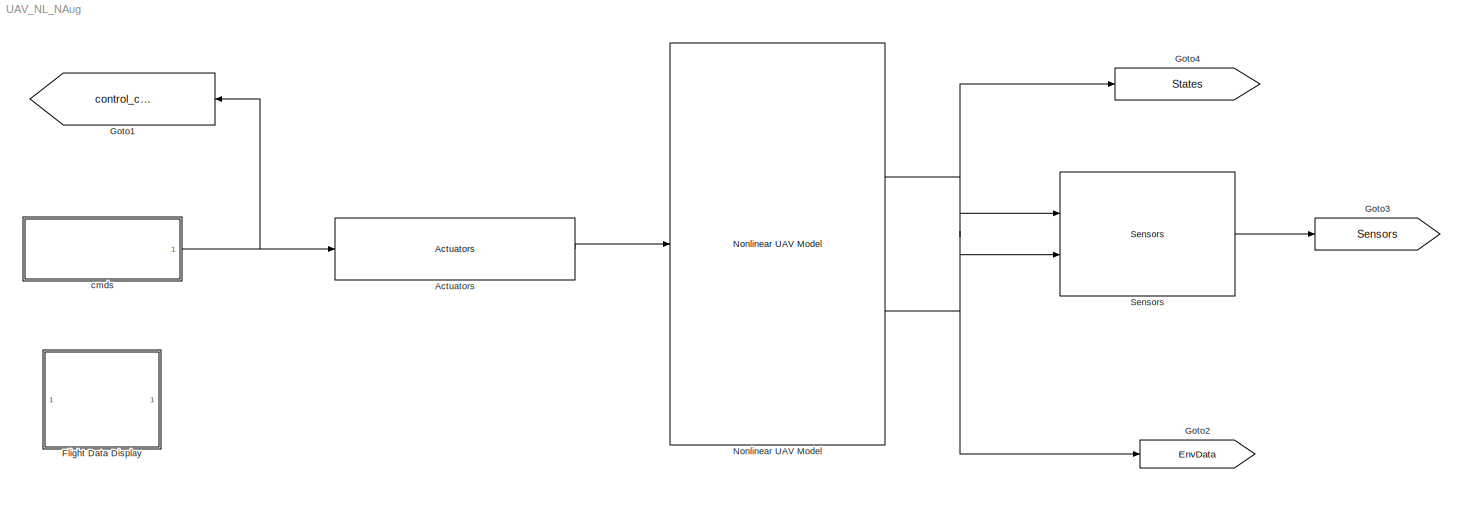
MODEL UAV_NL_NAug
KIND model
BLOCK [Reference] Actuators  REF=Actuator_Lib/Actuators
  Ports = [1, 1]
  SID = 3
  SourceBlock = Actuator_Lib/Actuators
  SourceType = SubSystem
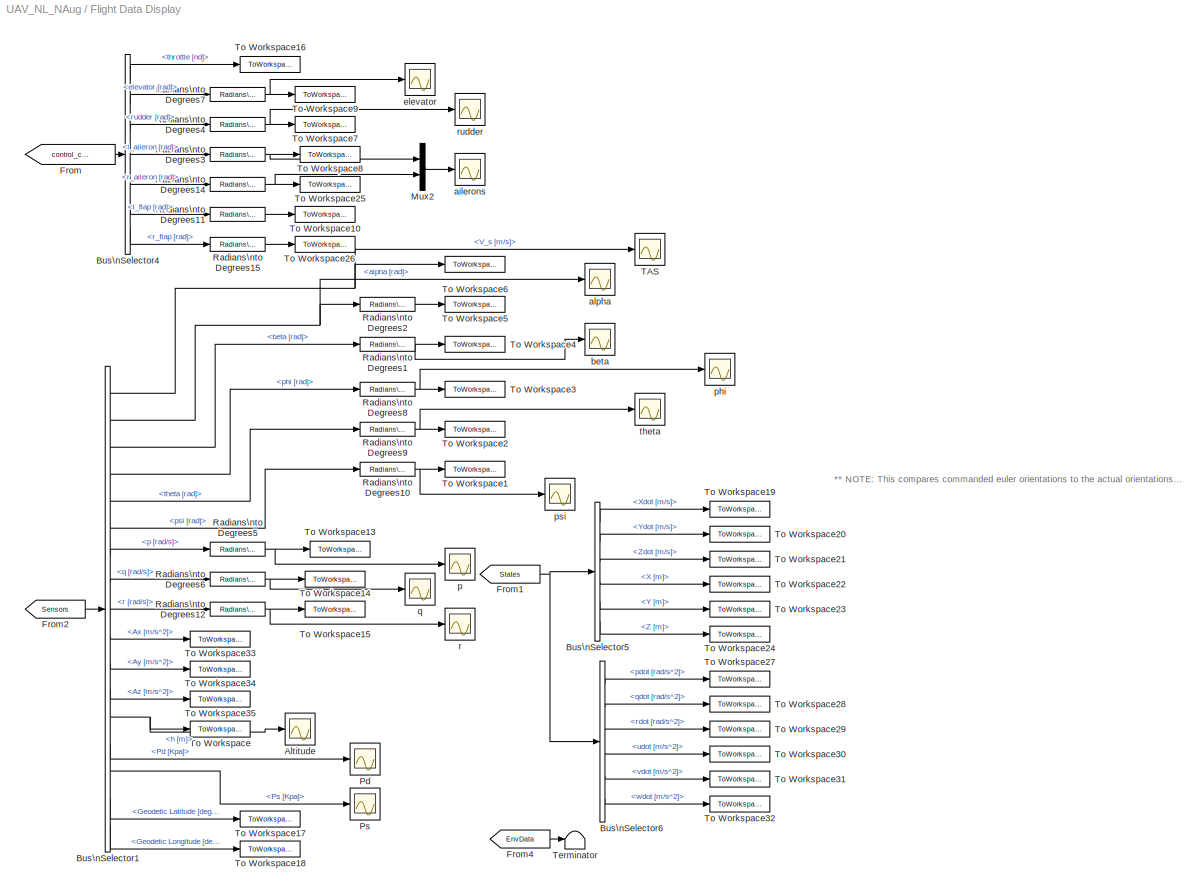
BLOCK [SubSystem] Flight Data Display
  FunctionWithSeparateData = off
  MaskDisplay = x = 0:.1:2*pi;\nplot(x,sin(x)+rand(size(x))*.5)
  MaskHideContents = off
  MaskIconFrame = on
  MaskIconOpaque = on
  MaskIconRotate = none
  MaskIconUnits = autoscale
  MaskPortRotate = default
  MinAlgLoopOccurrences = off
  Opaque = off
  Ports = []
  PropExecContextOutsideSubsystem = off
  RTWSystemCode = Auto
  RequestExecContextInheritance = off
  SID = 9
BLOCK [Scope] Flight Data Display/Altitude
  DataFormat = StructureWithTime
  Floating = off
  LimitDataPoints = off
  NumInputPorts = 1
  Ports = [1]
  SID = 10
  SampleTime = 0
  SaveName = ScopeData10
  TimeRange = 60
  YMax = 115
  YMin = 75
  ZoomMode = xonly
BLOCK [BusSelector] Flight Data Display/Bus\nSelector1
  OutputSignals = V_s [m/s],alpha [rad],beta [rad],phi [rad],theta [rad],psi [rad],p [rad/s],q [rad/s],r [rad/s],Ax [m/s^2],Ay [m/s^2],Az [m/s^2],h [m],Pd [Kpa],Ps [Kpa],Geodetic Latitude [deg],Geodetic Longitude [deg]
  Ports = [1, 17]
  SID = 11
BLOCK [BusSelector] Flight Data Display/Bus\nSelector4
  OutputSignals = throttle [nd],elevator [rad],rudder [rad],l_aileron [rad],r_aileron [rad],l_flap [rad],r_flap [rad]
  Ports = [1, 7]
  SID = 12
BLOCK [BusSelector] Flight Data Display/Bus\nSelector5
  OutputSignals = V_e [m/s].Xdot [m/s],V_e [m/s].Ydot [m/s],V_e [m/s].Zdot [m/s],X_e [m].X [m],X_e [m].Y [m],X_e [m].Z [m]
  Ports = [1, 6]
  SID = 13
BLOCK [BusSelector] Flight Data Display/Bus\nSelector6
  OutputSignals = AngAccel [rad/s^2].pdot [rad/s^2],AngAccel [rad/s^2].qdot [rad/s^2],AngAccel [rad/s^2].rdot [rad/s^2],A_b [m/s^2].udot [m/s^2],A_b [m/s^2].vdot [m/s^2],A_b [m/s^2].wdot [m/s^2]
  Ports = [1, 6]
  SID = 14
BLOCK [From] Flight Data Display/From
  GotoTag = control_cmds
  SID = 16
  TagVisibility = global
BLOCK [From] Flight Data Display/From1
  GotoTag = States
  SID = 17
  TagVisibility = global
BLOCK [From] Flight Data Display/From2
  GotoTag = Sensors
  SID = 18
  TagVisibility = global
BLOCK [From] Flight Data Display/From4
  GotoTag = EnvData
  SID = 20
  TagVisibility = global
BLOCK [Mux] Flight Data Display/Mux2
  DisplayOption = bar
  Inputs = 2
  Ports = [2, 1]
  SID = 22
BLOCK [Scope] Flight Data Display/Pd
  DataFormat = StructureWithTime
  Floating = off
  LimitDataPoints = off
  NumInputPorts = 1
  Ports = [1]
  SID = 24
  SampleTime = 0
  SaveName = ScopeData5
  TimeRange = 25
  YMax = 0.2
  YMin = 0.14
BLOCK [Scope] Flight Data Display/Ps
  DataFormat = StructureWithTime
  Floating = off
  LimitDataPoints = off
  NumInputPorts = 1
  Ports = [1]
  SID = 25
  SampleTime = 0
  SaveName = ScopeData6
  TimeRange = 25
  YMax = 100.52
  YMin = 100.45
BLOCK [Reference] Flight Data Display/Radians\nto Degrees1  REF=simulink_extras/Transformations/Radians\nto Degrees
  Ports = [1, 1]
  SID = 26
  SourceBlock = simulink_extras/Transformations/Radians\nto Degrees
  SourceType = RadiansToDegrees
BLOCK [Reference] Flight Data Display/Radians\nto Degrees10  REF=simulink_extras/Transformations/Radians\nto Degrees
  Ports = [1, 1]
  SID = 27
  SourceBlock = simulink_extras/Transformations/Radians\nto Degrees
  SourceType = RadiansToDegrees
BLOCK [Reference] Flight Data Display/Radians\nto Degrees11  REF=simulink_extras/Transformations/Radians\nto Degrees
  Ports = [1, 1]
  SID = 28
  SourceBlock = simulink_extras/Transformations/Radians\nto Degrees
  SourceType = RadiansToDegrees
BLOCK [Reference] Flight Data Display/Radians\nto Degrees12  REF=simulink_extras/Transformations/Radians\nto Degrees
  Ports = [1, 1]
  SID = 29
  SourceBlock = simulink_extras/Transformations/Radians\nto Degrees
  SourceType = RadiansToDegrees
BLOCK [Reference] Flight Data Display/Radians\nto Degrees14  REF=simulink_extras/Transformations/Radians\nto Degrees
  Ports = [1, 1]
  SID = 31
  SourceBlock = simulink_extras/Transformations/Radians\nto Degrees
  SourceType = RadiansToDegrees
BLOCK [Reference] Flight Data Display/Radians\nto Degrees15  REF=simulink_extras/Transformations/Radians\nto Degrees
  Ports = [1, 1]
  SID = 32
  SourceBlock = simulink_extras/Transformations/Radians\nto Degrees
  SourceType = RadiansToDegrees
BLOCK [Reference] Flight Data Display/Radians\nto Degrees2  REF=simulink_extras/Transformations/Radians\nto Degrees
  Ports = [1, 1]
  SID = 33
  SourceBlock = simulink_extras/Transformations/Radians\nto Degrees
  SourceType = RadiansToDegrees
BLOCK [Reference] Flight Data Display/Radians\nto Degrees3  REF=simulink_extras/Transformations/Radians\nto Degrees
  Ports = [1, 1]
  SID = 34
  SourceBlock = simulink_extras/Transformations/Radians\nto Degrees
  SourceType = RadiansToDegrees
BLOCK [Reference] Flight Data Display/Radians\nto Degrees4  REF=simulink_extras/Transformations/Radians\nto Degrees
  Ports = [1, 1]
  SID = 35
  SourceBlock = simulink_extras/Transformations/Radians\nto Degrees
  SourceType = RadiansToDegrees
BLOCK [Reference] Flight Data Display/Radians\nto Degrees5  REF=simulink_extras/Transformations/Radians\nto Degrees
  Ports = [1, 1]
  SID = 36
  SourceBlock = simulink_extras/Transformations/Radians\nto Degrees
  SourceType = RadiansToDegrees
BLOCK [Reference] Flight Data Display/Radians\nto Degrees6  REF=simulink_extras/Transformations/Radians\nto Degrees
  Ports = [1, 1]
  SID = 37
  SourceBlock = simulink_extras/Transformations/Radians\nto Degrees
  SourceType = RadiansToDegrees
BLOCK [Reference] Flight Data Display/Radians\nto Degrees7  REF=simulink_extras/Transformations/Radians\nto Degrees
  Ports = [1, 1]
  SID = 38
  SourceBlock = simulink_extras/Transformations/Radians\nto Degrees
  SourceType = RadiansToDegrees
BLOCK [Reference] Flight Data Display/Radians\nto Degrees8  REF=simulink_extras/Transformations/Radians\nto Degrees
  Ports = [1, 1]
  SID = 39
  SourceBlock = simulink_extras/Transformations/Radians\nto Degrees
  SourceType = RadiansToDegrees
BLOCK [Reference] Flight Data Display/Radians\nto Degrees9  REF=simulink_extras/Transformations/Radians\nto Degrees
  Ports = [1, 1]
  SID = 40
  SourceBlock = simulink_extras/Transformations/Radians\nto Degrees
  SourceType = RadiansToDegrees
BLOCK [Scope] Flight Data Display/TAS
  DataFormat = StructureWithTime
  Floating = off
  LimitDataPoints = off
  NumInputPorts = 1
  Ports = [1]
  SID = 41
  SampleTime = 0
  SaveName = ScopeData3
  TimeRange = 45
  YMax = 19
  YMin = 14
BLOCK [Terminator] Flight Data Display/Terminator
  SID = 42
BLOCK [ToWorkspace] Flight Data Display/To Workspace
  MaxDataPoints = inf
  Ports = [1]
  SID = 43
  SampleTime = -1
  SaveFormat = Array
  VariableName = alt
BLOCK [ToWorkspace] Flight Data Display/To Workspace1
  MaxDataPoints = inf
  Ports = [1]
  SID = 44
  SampleTime = -1
  SaveFormat = Array
  VariableName = psi
BLOCK [ToWorkspace] Flight Data Display/To Workspace10
  MaxDataPoints = inf
  Ports = [1]
  SID = 45
  SampleTime = -1
  SaveFormat = Array
  VariableName = l_flap
BLOCK [ToWorkspace] Flight Data Display/To Workspace13
  MaxDataPoints = inf
  Ports = [1]
  SID = 48
  SampleTime = -1
  SaveFormat = Array
  VariableName = p
BLOCK [ToWorkspace] Flight Data Display/To Workspace14
  MaxDataPoints = inf
  Ports = [1]
  SID = 49
  SampleTime = -1
  SaveFormat = Array
  VariableName = q
BLOCK [ToWorkspace] Flight Data Display/To Workspace15
  MaxDataPoints = inf
  Ports = [1]
  SID = 50
  SampleTime = -1
  SaveFormat = Array
  VariableName = r
BLOCK [ToWorkspace] Flight Data Display/To Workspace16
  MaxDataPoints = inf
  Ports = [1]
  SID = 51
  SampleTime = -1
  SaveFormat = Array
  VariableName = throttle
BLOCK [ToWorkspace] Flight Data Display/To Workspace17
  MaxDataPoints = inf
  Ports = [1]
  SID = 52
  SampleTime = -1
  SaveFormat = Array
  VariableName = lat
BLOCK [ToWorkspace] Flight Data Display/To Workspace18
  MaxDataPoints = inf
  Ports = [1]
  SID = 53
  SampleTime = -1
  SaveFormat = Array
  VariableName = lon
BLOCK [ToWorkspace] Flight Data Display/To Workspace19
  MaxDataPoints = inf
  Ports = [1]
  SID = 54
  SampleTime = -1
  SaveFormat = Array
  VariableName = Xdot
BLOCK [ToWorkspace] Flight Data Display/To Workspace2
  MaxDataPoints = inf
  Ports = [1]
  SID = 55
  SampleTime = -1
  SaveFormat = Array
  VariableName = theta
BLOCK [ToWorkspace] Flight Data Display/To Workspace20
  MaxDataPoints = inf
  Ports = [1]
  SID = 56
  SampleTime = -1
  SaveFormat = Array
  VariableName = Ydot
BLOCK [ToWorkspace] Flight Data Display/To Workspace21
  MaxDataPoints = inf
  Ports = [1]
  SID = 57
  SampleTime = -1
  SaveFormat = Array
  VariableName = Zdot
BLOCK [ToWorkspace] Flight Data Display/To Workspace22
  MaxDataPoints = inf
  Ports = [1]
  SID = 58
  SampleTime = -1
  SaveFormat = Array
  VariableName = X
BLOCK [ToWorkspace] Flight Data Display/To Workspace23
  MaxDataPoints = inf
  Ports = [1]
  SID = 59
  SampleTime = -1
  SaveFormat = Array
  VariableName = Y
BLOCK [ToWorkspace] Flight Data Display/To Workspace24
  MaxDataPoints = inf
  Ports = [1]
  SID = 60
  SampleTime = -1
  SaveFormat = Array
  VariableName = Z
BLOCK [ToWorkspace] Flight Data Display/To Workspace25
  MaxDataPoints = inf
  Ports = [1]
  SID = 61
  SampleTime = -1
  SaveFormat = Array
  VariableName = r_aileron
BLOCK [ToWorkspace] Flight Data Display/To Workspace26
  MaxDataPoints = inf
  Ports = [1]
  SID = 62
  SampleTime = -1
  SaveFormat = Array
  VariableName = r_flap
BLOCK [ToWorkspace] Flight Data Display/To Workspace27
  MaxDataPoints = inf
  Ports = [1]
  SID = 63
  SampleTime = -1
  SaveFormat = Array
  VariableName = pdot
BLOCK [ToWorkspace] Flight Data Display/To Workspace28
  MaxDataPoints = inf
  Ports = [1]
  SID = 64
  SampleTime = -1
  SaveFormat = Array
  VariableName = qdot
BLOCK [ToWorkspace] Flight Data Display/To Workspace29
  MaxDataPoints = inf
  Ports = [1]
  SID = 65
  SampleTime = -1
  SaveFormat = Array
  VariableName = rdot
BLOCK [ToWorkspace] Flight Data Display/To Workspace3
  MaxDataPoints = inf
  Ports = [1]
  SID = 66
  SampleTime = -1
  SaveFormat = Array
  VariableName = phi
BLOCK [ToWorkspace] Flight Data Display/To Workspace30
  MaxDataPoints = inf
  Ports = [1]
  SID = 67
  SampleTime = -1
  SaveFormat = Array
  VariableName = udot
BLOCK [ToWorkspace] Flight Data Display/To Workspace31
  MaxDataPoints = inf
  Ports = [1]
  SID = 68
  SampleTime = -1
  SaveFormat = Array
  VariableName = vdot
BLOCK [ToWorkspace] Flight Data Display/To Workspace32
  MaxDataPoints = inf
  Ports = [1]
  SID = 69
  SampleTime = -1
  SaveFormat = Array
  VariableName = wdot
BLOCK [ToWorkspace] Flight Data Display/To Workspace33
  MaxDataPoints = inf
  Ports = [1]
  SID = 70
  SampleTime = -1
  SaveFormat = Array
  VariableName = Ax
BLOCK [ToWorkspace] Flight Data Display/To Workspace34
  MaxDataPoints = inf
  Ports = [1]
  SID = 71
  SampleTime = -1
  SaveFormat = Array
  VariableName = Ay
BLOCK [ToWorkspace] Flight Data Display/To Workspace35
  MaxDataPoints = inf
  Ports = [1]
  SID = 72
  SampleTime = -1
  SaveFormat = Array
  VariableName = Az
BLOCK [ToWorkspace] Flight Data Display/To Workspace4
  MaxDataPoints = inf
  Ports = [1]
  SID = 73
  SampleTime = -1
  SaveFormat = Array
  VariableName = beta
BLOCK [ToWorkspace] Flight Data Display/To Workspace5
  MaxDataPoints = inf
  Ports = [1]
  SID = 74
  SampleTime = -1
  SaveFormat = Array
  VariableName = alpha
BLOCK [ToWorkspace] Flight Data Display/To Workspace6
  MaxDataPoints = inf
  Ports = [1]
  SID = 75
  SampleTime = -1
  SaveFormat = Array
  VariableName = V_s
BLOCK [ToWorkspace] Flight Data Display/To Workspace7
  MaxDataPoints = inf
  Ports = [1]
  SID = 76
  SampleTime = -1
  SaveFormat = Array
  VariableName = rudder
BLOCK [ToWorkspace] Flight Data Display/To Workspace8
  MaxDataPoints = inf
  Ports = [1]
  SID = 77
  SampleTime = -1
  SaveFormat = Array
  VariableName = l_aileron
BLOCK [ToWorkspace] Flight Data Display/To Workspace9
  MaxDataPoints = inf
  Ports = [1]
  SID = 78
  SampleTime = -1
  SaveFormat = Array
  VariableName = elevator
BLOCK [Scope] Flight Data Display/ailerons
  DataFormat = StructureWithTime
  Floating = off
  LimitDataPoints = off
  NumInputPorts = 1
  Ports = [1]
  SID = 79
  SampleTime = 0
  SaveName = ScopeData2
  TimeRange = 15
  YMax = 0.6
  YMin = -0.6
BLOCK [Scope] Flight Data Display/alpha
  DataFormat = StructureWithTime
  Floating = off
  LimitDataPoints = off
  NumInputPorts = 1
  Ports = [1]
  SID = 80
  SampleTime = 0
  SaveName = ScopeData7
  TimeRange = 25
  YMax = 0.08
  YMin = 0.035
BLOCK [Scope] Flight Data Display/beta
  DataFormat = StructureWithTime
  Floating = off
  LimitDataPoints = off
  NumInputPorts = 1
  Ports = [1]
  SID = 81
  SampleTime = 0
  SaveName = ScopeData11
  TimeRange = 25
  YMax = 0.06
  YMin = -0.06
BLOCK [Scope] Flight Data Display/elevator
  DataFormat = StructureWithTime
  Floating = off
  LimitDataPoints = off
  NumInputPorts = 1
  Ports = [1]
  SID = 82
  SampleTime = 0
  SaveName = ScopeData1
  TimeRange = 15
  YMax = -5.23031
  YMin = -5.78087
BLOCK [Scope] Flight Data Display/p
  DataFormat = StructureWithTime
  Floating = off
  LimitDataPoints = off
  NumInputPorts = 1
  Ports = [1]
  SID = 83
  SampleTime = 0
  SaveName = ScopeData8
  TimeRange = 40
  YMax = 200
  YMin = -150
BLOCK [Scope] Flight Data Display/phi
  DataFormat = StructureWithTime
  Floating = off
  LimitDataPoints = off
  NumInputPorts = 1
  Ports = [1]
  SID = 118
  SampleTime = 0
  SaveName = ScopeData12
  TimeRange = 45
  YMax = 19
  YMin = 14
BLOCK [Scope] Flight Data Display/psi
  DataFormat = StructureWithTime
  Floating = off
  LimitDataPoints = off
  NumInputPorts = 1
  Ports = [1]
  SID = 120
  SampleTime = 0
  SaveName = ScopeData14
  TimeRange = 25
  YMax = 0.06
  YMin = -0.06
BLOCK [Scope] Flight Data Display/q
  DataFormat = StructureWithTime
  Floating = off
  LimitDataPoints = off
  NumInputPorts = 1
  Ports = [1]
  SID = 85
  SampleTime = 0
  SaveName = ScopeData9
  TimeRange = 15
  YMax = 0.252772
  YMin = 0.252772
BLOCK [Scope] Flight Data Display/r
  DataFormat = StructureWithTime
  Floating = off
  LimitDataPoints = off
  NumInputPorts = 1
  Ports = [1]
  SID = 86
  SampleTime = 0
  TimeRange = 45
  YMax = 8
  YMin = -8
BLOCK [Scope] Flight Data Display/rudder
  DataFormat = StructureWithTime
  Floating = off
  LimitDataPoints = off
  NumInputPorts = 1
  Ports = [1]
  SID = 87
  SampleTime = 0
  SaveName = ScopeData4
  TimeRange = 45
  YMax = 2
  YMin = -1.5
BLOCK [Scope] Flight Data Display/theta
  DataFormat = StructureWithTime
  Floating = off
  LimitDataPoints = off
  NumInputPorts = 1
  Ports = [1]
  SID = 119
  SampleTime = 0
  SaveName = ScopeData13
  TimeRange = 25
  YMax = 0.08
  YMin = 0.035
BLOCK [Goto] Goto1
  GotoTag = control_cmds
  SID = 115
  TagVisibility = global
BLOCK [Goto] Goto2
  GotoTag = EnvData
  SID = 94
  TagVisibility = global
BLOCK [Goto] Goto3
  GotoTag = Sensors
  SID = 89
  TagVisibility = global
BLOCK [Goto] Goto4
  GotoTag = States
  SID = 95
  TagVisibility = global
BLOCK [Reference] Nonlinear UAV Model  REF=NonlinearModel_Lib/Nonlinear UAV Model
  Ports = [1, 2]
  SID = 1
  SourceBlock = NonlinearModel_Lib/Nonlinear UAV Model
  SourceType = SubSystem
BLOCK [Reference] Sensors  REF=Sensors_Lib/Sensors
  Ports = [2, 1]
  SID = 93
  SourceBlock = Sensors_Lib/Sensors
  SourceType = SubSystem
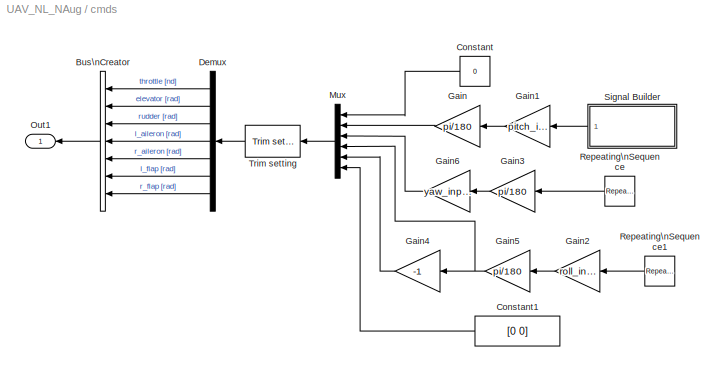
BLOCK [SubSystem] cmds
  FunctionWithSeparateData = off
  MaskHideContents = off
  MinAlgLoopOccurrences = off
  Opaque = off
  Ports = [0, 1]
  PropExecContextOutsideSubsystem = off
  RTWSystemCode = Auto
  RequestExecContextInheritance = off
  SID = 105
BLOCK [BusCreator] cmds/Bus\nCreator
  DisplayOption = bar
  Inputs = 7
  Ports = [7, 1]
  SID = 112
BLOCK [Constant] cmds/Constant
  SID = 103
  Value = 0
BLOCK [Constant] cmds/Constant1
  SID = 111
  Value = [0 0]
BLOCK [Demux] cmds/Demux
  DisplayOption = bar
  Outputs = 7
  Ports = [1, 7]
  SID = 113
BLOCK [Gain] cmds/Gain
  Gain = pi/180
  OutDataTypeStr = Inherit: Inherit via internal rule
  ParamDataTypeStr = Inherit: Inherit via internal rule
  SID = 117
  SaturateOnIntegerOverflow = off
BLOCK [Gain] cmds/Gain1
  Gain = pitch_input
  OutDataTypeStr = Inherit: Inherit via internal rule
  ParamDataTypeStr = Inherit: Inherit via internal rule
  SID = 128
  SaturateOnIntegerOverflow = off
BLOCK [Gain] cmds/Gain2
  Gain = roll_input
  OutDataTypeStr = Inherit: Inherit via internal rule
  ParamDataTypeStr = Inherit: Inherit via internal rule
  SID = 131
  SaturateOnIntegerOverflow = off
BLOCK [Gain] cmds/Gain3
  Gain = pi/180
  OutDataTypeStr = Inherit: Inherit via internal rule
  ParamDataTypeStr = Inherit: Inherit via internal rule
  SID = 132
  SaturateOnIntegerOverflow = off
BLOCK [Gain] cmds/Gain4
  Gain = -1
  OutDataTypeStr = Inherit: Inherit via internal rule
  ParamDataTypeStr = Inherit: Inherit via internal rule
  SID = 133
  SaturateOnIntegerOverflow = off
BLOCK [Gain] cmds/Gain5
  Gain = pi/180
  OutDataTypeStr = Inherit: Inherit via internal rule
  ParamDataTypeStr = Inherit: Inherit via internal rule
  SID = 138
  SaturateOnIntegerOverflow = off
BLOCK [Gain] cmds/Gain6
  Gain = yaw_input
  OutDataTypeStr = Inherit: Inherit via internal rule
  ParamDataTypeStr = Inherit: Inherit via internal rule
  SID = 139
  SaturateOnIntegerOverflow = off
BLOCK [Mux] cmds/Mux
  DisplayOption = bar
  Inputs = 6
  Ports = [6, 1]
  SID = 104
BLOCK [Outport] cmds/Out1
  IconDisplay = Port number
  SID = 106
BLOCK [Reference] cmds/Repeating\nSequence  REF=simulink/Sources/Repeating\nSequence
  Ports = [0, 1]
  SID = 134
  SourceBlock = simulink/Sources/Repeating\nSequence
  SourceType = Repeating table
  rep_seq_t = [0 2 2 3 3 4 4 100]
  rep_seq_y = [0 0 10 10 -10 -10 0 0]
BLOCK [Reference] cmds/Repeating\nSequence1  REF=simulink/Sources/Repeating\nSequence
  Ports = [0, 1]
  SID = 135
  SourceBlock = simulink/Sources/Repeating\nSequence
  SourceType = Repeating table
  rep_seq_t = [0 20 20 21 21 22 22 100]
  rep_seq_y = [0 0 10 10 -10 -10 0 0]
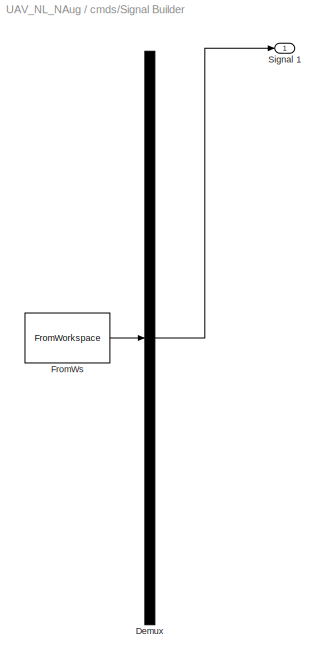
BLOCK [SubSystem] cmds/Signal Builder
  ClipboardFcn = sigbuilder_block('clipboard');
  CloseFcn = sigbuilder_block('close');
  CopyFcn = sigbuilder_block('copy');
  DeleteFcn = sigbuilder_block('delete');
  FunctionWithSeparateData = off
  LoadFcn = sigbuilder_block('load');
  MaskCapabilities = slmaskedcaps(gcbh)
  MaskDescription = Simulink:masks:SigbuilderBlock_MD
  MaskDisplay = plot(0, 0, 100, 100,[2, 2, 32, 32, 2], [68, 8, 8, 68, 68],[32, 2], [38, 38], [32, 19, 2],[53, 60, 44], [32, 17, 17, 2],[16, 16, 31, 31]);txt = getActiveGroup(gcbh);text(2, 100, txt,'verticalAlignment', 'top');
  MaskHideContents = on
  MaskIconFrame = on
  MaskIconOpaque = off
  MaskIconRotate = port
  MaskIconUnits = autoscale
  MaskInitialization = if ~strcmp(get_param(bdroot(gcbh),'SimulationStatus'),'stopped') tuvar = sigbuilder_block('maskInit'); end
  MaskPortRotate = default
  MaskSelfModifiable = on
  MaskType = Sigbuilder block
  MinAlgLoopOccurrences = off
  ModelCloseFcn = sigbuilder_block('modelClose');
  NameChangeFcn = sigbuilder_block('namechange');
  Opaque = off
  OpenFcn = sigbuilder_block('open',[387.2 153.6 550.4 400 ]);
  Ports = [0, 1]
  PreSaveFcn = sigbuilder_block('preSave');
  PropExecContextOutsideSubsystem = off
  RTWSystemCode = Auto
  RequestExecContextInheritance = off
  SID = 110
  StartFcn = sigbuilder_block('start');
  StopFcn = sigbuilder_block('stop');
  Tag = STV Subsys
BLOCK [Demux] cmds/Signal Builder/Demux
  Outputs = 1
  Ports = [1, 1]
  SID = 110:1
  Tag = STV Demux
BLOCK [FromWorkspace] cmds/Signal Builder/FromWs
  SID = 110:2
  SampleTime = 0
  SigBuilderData = DataTag0
  Tag = STV FromWs
  VariableName = tuvar
  VnvData = DataTag1
  ZeroCross = on
BLOCK [Outport] cmds/Signal Builder/Signal 1
  IconDisplay = Port number
  SID = 110:3
  Tag = STV Outport
BLOCK [Reference] cmds/Trim setting   REF=Actuator_Lib/Trim setting 
  Ports = [1, 1]
  SID = 114
  SourceBlock = Actuator_Lib/Trim setting
  SourceType = SubSystem
ANNOTATION Flight Data Display: ** NOTE: This compares commanded euler orientations to the actual orientations over time
LINE Actuators:1 -> Nonlinear UAV Model:1
NET Flight Data Display/Bus\nSelector1:1 -> Flight Data Display/TAS:1, Flight Data Display/To Workspace6:1
LINE Flight Data Display/Bus\nSelector1:10 -> Flight Data Display/To Workspace33:1
LINE Flight Data Display/Bus\nSelector1:11 -> Flight Data Display/To Workspace34:1
LINE Flight Data Display/Bus\nSelector1:12 -> Flight Data Display/To Workspace35:1
NET Flight Data Display/Bus\nSelector1:13 -> Flight Data Display/Altitude:1, Flight Data Display/To Workspace:1
LINE Flight Data Display/Bus\nSelector1:14 -> Flight Data Display/Pd:1
LINE Flight Data Display/Bus\nSelector1:15 -> Flight Data Display/Ps:1
LINE Flight Data Display/Bus\nSelector1:16 -> Flight Data Display/To Workspace17:1
LINE Flight Data Display/Bus\nSelector1:17 -> Flight Data Display/To Workspace18:1
NET Flight Data Display/Bus\nSelector1:2 -> Flight Data Display/Radians\nto Degrees2:1, Flight Data Display/alpha:1
LINE Flight Data Display/Bus\nSelector1:3 -> Flight Data Display/Radians\nto Degrees1:1
LINE Flight Data Display/Bus\nSelector1:4 -> Flight Data Display/Radians\nto Degrees8:1
LINE Flight Data Display/Bus\nSelector1:5 -> Flight Data Display/Radians\nto Degrees9:1
LINE Flight Data Display/Bus\nSelector1:6 -> Flight Data Display/Radians\nto Degrees10:1
LINE Flight Data Display/Bus\nSelector1:7 -> Flight Data Display/Radians\nto Degrees5:1
LINE Flight Data Display/Bus\nSelector1:8 -> Flight Data Display/Radians\nto Degrees6:1
LINE Flight Data Display/Bus\nSelector1:9 -> Flight Data Display/Radians\nto Degrees12:1
LINE Flight Data Display/Bus\nSelector4:1 -> Flight Data Display/To Workspace16:1
LINE Flight Data Display/Bus\nSelector4:2 -> Flight Data Display/Radians\nto Degrees7:1
LINE Flight Data Display/Bus\nSelector4:3 -> Flight Data Display/Radians\nto Degrees4:1
LINE Flight Data Display/Bus\nSelector4:4 -> Flight Data Display/Radians\nto Degrees3:1
LINE Flight Data Display/Bus\nSelector4:5 -> Flight Data Display/Radians\nto Degrees14:1
LINE Flight Data Display/Bus\nSelector4:6 -> Flight Data Display/Radians\nto Degrees11:1
LINE Flight Data Display/Bus\nSelector4:7 -> Flight Data Display/Radians\nto Degrees15:1
LINE Flight Data Display/Bus\nSelector5:1 -> Flight Data Display/To Workspace19:1
LINE Flight Data Display/Bus\nSelector5:2 -> Flight Data Display/To Workspace20:1
LINE Flight Data Display/Bus\nSelector5:3 -> Flight Data Display/To Workspace21:1
LINE Flight Data Display/Bus\nSelector5:4 -> Flight Data Display/To Workspace22:1
LINE Flight Data Display/Bus\nSelector5:5 -> Flight Data Display/To Workspace23:1
LINE Flight Data Display/Bus\nSelector5:6 -> Flight Data Display/To Workspace24:1
LINE Flight Data Display/Bus\nSelector6:1 -> Flight Data Display/To Workspace27:1
LINE Flight Data Display/Bus\nSelector6:2 -> Flight Data Display/To Workspace28:1
LINE Flight Data Display/Bus\nSelector6:3 -> Flight Data Display/To Workspace29:1
LINE Flight Data Display/Bus\nSelector6:4 -> Flight Data Display/To Workspace30:1
LINE Flight Data Display/Bus\nSelector6:5 -> Flight Data Display/To Workspace31:1
LINE Flight Data Display/Bus\nSelector6:6 -> Flight Data Display/To Workspace32:1
NET Flight Data Display/From1:1 -> Flight Data Display/Bus\nSelector5:1, Flight Data Display/Bus\nSelector6:1
LINE Flight Data Display/From2:1 -> Flight Data Display/Bus\nSelector1:1
LINE Flight Data Display/From4:1 -> Flight Data Display/Terminator:1
LINE Flight Data Display/From:1 -> Flight Data Display/Bus\nSelector4:1
LINE Flight Data Display/Mux2:1 -> Flight Data Display/ailerons:1
NET Flight Data Display/Radians\nto Degrees10:1 -> Flight Data Display/To Workspace1:1, Flight Data Display/psi:1
LINE Flight Data Display/Radians\nto Degrees11:1 -> Flight Data Display/To Workspace10:1
NET Flight Data Display/Radians\nto Degrees12:1 -> Flight Data Display/To Workspace15:1, Flight Data Display/r:1
NET Flight Data Display/Radians\nto Degrees14:1 -> Flight Data Display/Mux2:2, Flight Data Display/To Workspace25:1
LINE Flight Data Display/Radians\nto Degrees15:1 -> Flight Data Display/To Workspace26:1
NET Flight Data Display/Radians\nto Degrees1:1 -> Flight Data Display/To Workspace4:1, Flight Data Display/beta:1
LINE Flight Data Display/Radians\nto Degrees2:1 -> Flight Data Display/To Workspace5:1
NET Flight Data Display/Radians\nto Degrees3:1 -> Flight Data Display/Mux2:1, Flight Data Display/To Workspace8:1
NET Flight Data Display/Radians\nto Degrees4:1 -> Flight Data Display/To Workspace7:1, Flight Data Display/rudder:1
NET Flight Data Display/Radians\nto Degrees5:1 -> Flight Data Display/To Workspace13:1, Flight Data Display/p:1
NET Flight Data Display/Radians\nto Degrees6:1 -> Flight Data Display/To Workspace14:1, Flight Data Display/q:1
NET Flight Data Display/Radians\nto Degrees7:1 -> Flight Data Display/To Workspace9:1, Flight Data Display/elevator:1
NET Flight Data Display/Radians\nto Degrees8:1 -> Flight Data Display/To Workspace3:1, Flight Data Display/phi:1
NET Flight Data Display/Radians\nto Degrees9:1 -> Flight Data Display/To Workspace2:1, Flight Data Display/theta:1
NET Nonlinear UAV Model:1 -> Goto4:1, Sensors:1
NET Nonlinear UAV Model:2 -> Goto2:1, Sensors:2
LINE Sensors:1 -> Goto3:1
LINE cmds/Bus\nCreator:1 -> cmds/Out1:1
LINE cmds/Constant1:1 -> cmds/Mux:6
LINE cmds/Constant:1 -> cmds/Mux:1
LINE cmds/Demux:1 -> cmds/Bus\nCreator:1
LINE cmds/Demux:2 -> cmds/Bus\nCreator:2
LINE cmds/Demux:3 -> cmds/Bus\nCreator:3
LINE cmds/Demux:4 -> cmds/Bus\nCreator:4
LINE cmds/Demux:5 -> cmds/Bus\nCreator:5
LINE cmds/Demux:6 -> cmds/Bus\nCreator:6
LINE cmds/Demux:7 -> cmds/Bus\nCreator:7
LINE cmds/Gain1:1 -> cmds/Gain:1
LINE cmds/Gain2:1 -> cmds/Gain5:1
LINE cmds/Gain3:1 -> cmds/Gain6:1
LINE cmds/Gain4:1 -> cmds/Mux:5
NET cmds/Gain5:1 -> cmds/Gain4:1, cmds/Mux:4
LINE cmds/Gain6:1 -> cmds/Mux:3
LINE cmds/Gain:1 -> cmds/Mux:2
LINE cmds/Mux:1 -> cmds/Trim setting :1
LINE cmds/Repeating\nSequence1:1 -> cmds/Gain2:1
LINE cmds/Repeating\nSequence:1 -> cmds/Gain3:1
LINE cmds/Signal Builder/Demux:1 -> cmds/Signal Builder/Signal 1:1
LINE cmds/Signal Builder/FromWs:1 -> cmds/Signal Builder/Demux:1
LINE cmds/Signal Builder:1 -> cmds/Gain1:1
LINE cmds/Trim setting :1 -> cmds/Demux:1
NET cmds:1 -> Actuators:1, Goto1:1
note: NET lines group one-source signal fan-out (src -> all destinations, sorted); 1:1 wires keep LINE
